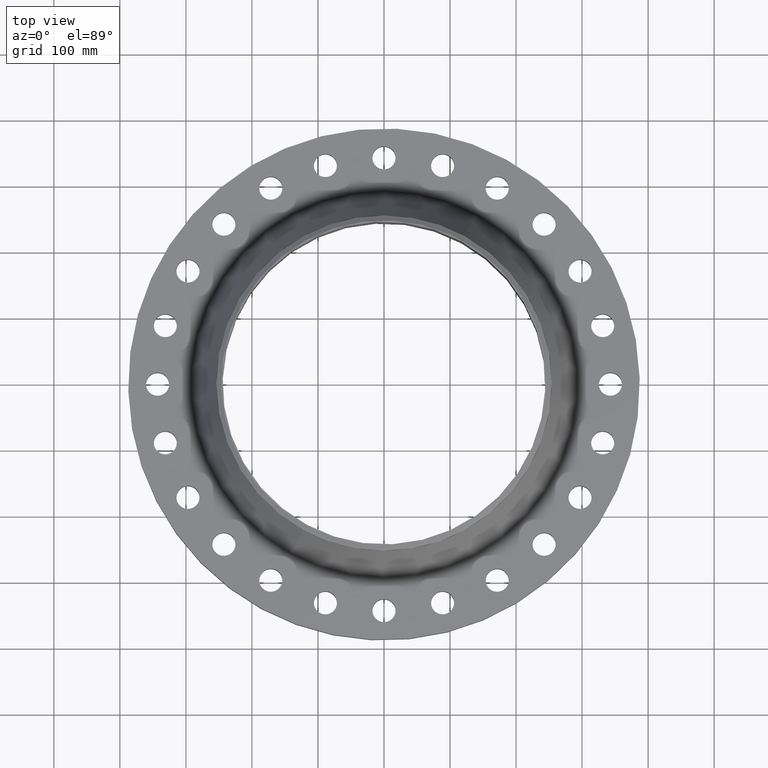
[diagram: clean part render]
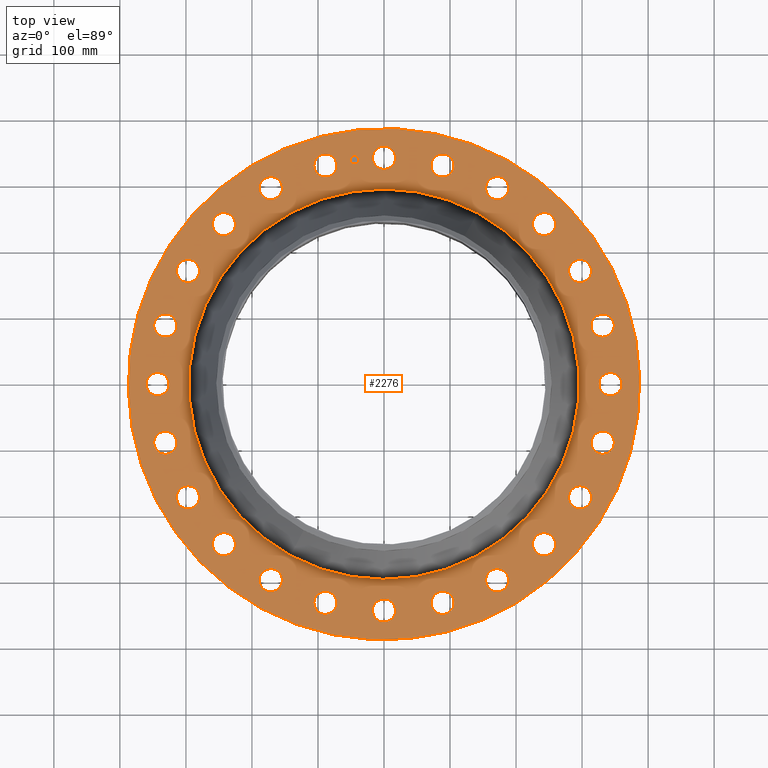
[diagram: same view with one face highlighted and labeled with its STEP entity id]
A machine part, top view. The second image highlights one B-rep face of the part: STEP entity #2276.
In plain terms, the highlighted planar face has unit normal (0, 0, -1).
Its self-contained STEP definition (entity closure, byte-faithful):
#65=AXIS2_PLACEMENT_3D('Circle Axis2P3D',#63,#64,$) ;
#90=AXIS2_PLACEMENT_3D('Circle Axis2P3D',#88,#89,$) ;
#130=AXIS2_PLACEMENT_3D('Circle Axis2P3D',#128,#129,$) ;
#154=AXIS2_PLACEMENT_3D('Circle Axis2P3D',#152,#153,$) ;
#171=AXIS2_PLACEMENT_3D('Circle Axis2P3D',#169,#170,$) ;
#206=AXIS2_PLACEMENT_3D('Circle Axis2P3D',#204,#205,$) ;
#949=AXIS2_PLACEMENT_3D('Circle Axis2P3D',#947,#948,$) ;
#961=AXIS2_PLACEMENT_3D('Circle Axis2P3D',#959,#960,$) ;
#992=AXIS2_PLACEMENT_3D('Circle Axis2P3D',#990,#991,$) ;
#1004=AXIS2_PLACEMENT_3D('Circle Axis2P3D',#1002,#1003,$) ;
#1035=AXIS2_PLACEMENT_3D('Circle Axis2P3D',#1033,#1034,$) ;
#1047=AXIS2_PLACEMENT_3D('Circle Axis2P3D',#1045,#1046,$) ;
#1078=AXIS2_PLACEMENT_3D('Circle Axis2P3D',#1076,#1077,$) ;
#1090=AXIS2_PLACEMENT_3D('Circle Axis2P3D',#1088,#1089,$) ;
#1121=AXIS2_PLACEMENT_3D('Circle Axis2P3D',#1119,#1120,$) ;
#1133=AXIS2_PLACEMENT_3D('Circle Axis2P3D',#1131,#1132,$) ;
#1164=AXIS2_PLACEMENT_3D('Circle Axis2P3D',#1162,#1163,$) ;
#1176=AXIS2_PLACEMENT_3D('Circle Axis2P3D',#1174,#1175,$) ;
#1207=AXIS2_PLACEMENT_3D('Circle Axis2P3D',#1205,#1206,$) ;
#1219=AXIS2_PLACEMENT_3D('Circle Axis2P3D',#1217,#1218,$) ;
#1250=AXIS2_PLACEMENT_3D('Circle Axis2P3D',#1248,#1249,$) ;
#1262=AXIS2_PLACEMENT_3D('Circle Axis2P3D',#1260,#1261,$) ;
#1293=AXIS2_PLACEMENT_3D('Circle Axis2P3D',#1291,#1292,$) ;
#1305=AXIS2_PLACEMENT_3D('Circle Axis2P3D',#1303,#1304,$) ;
#1336=AXIS2_PLACEMENT_3D('Circle Axis2P3D',#1334,#1335,$) ;
#1348=AXIS2_PLACEMENT_3D('Circle Axis2P3D',#1346,#1347,$) ;
#1379=AXIS2_PLACEMENT_3D('Circle Axis2P3D',#1377,#1378,$) ;
#1391=AXIS2_PLACEMENT_3D('Circle Axis2P3D',#1389,#1390,$) ;
#1422=AXIS2_PLACEMENT_3D('Circle Axis2P3D',#1420,#1421,$) ;
#1434=AXIS2_PLACEMENT_3D('Circle Axis2P3D',#1432,#1433,$) ;
#1465=AXIS2_PLACEMENT_3D('Circle Axis2P3D',#1463,#1464,$) ;
#1477=AXIS2_PLACEMENT_3D('Circle Axis2P3D',#1475,#1476,$) ;
#1508=AXIS2_PLACEMENT_3D('Circle Axis2P3D',#1506,#1507,$) ;
#1520=AXIS2_PLACEMENT_3D('Circle Axis2P3D',#1518,#1519,$) ;
#1551=AXIS2_PLACEMENT_3D('Circle Axis2P3D',#1549,#1550,$) ;
#1563=AXIS2_PLACEMENT_3D('Circle Axis2P3D',#1561,#1562,$) ;
#1594=AXIS2_PLACEMENT_3D('Circle Axis2P3D',#1592,#1593,$) ;
#1606=AXIS2_PLACEMENT_3D('Circle Axis2P3D',#1604,#1605,$) ;
#1637=AXIS2_PLACEMENT_3D('Circle Axis2P3D',#1635,#1636,$) ;
#1649=AXIS2_PLACEMENT_3D('Circle Axis2P3D',#1647,#1648,$) ;
#1680=AXIS2_PLACEMENT_3D('Circle Axis2P3D',#1678,#1679,$) ;
#1692=AXIS2_PLACEMENT_3D('Circle Axis2P3D',#1690,#1691,$) ;
#1723=AXIS2_PLACEMENT_3D('Circle Axis2P3D',#1721,#1722,$) ;
#1735=AXIS2_PLACEMENT_3D('Circle Axis2P3D',#1733,#1734,$) ;
#1766=AXIS2_PLACEMENT_3D('Circle Axis2P3D',#1764,#1765,$) ;
#1778=AXIS2_PLACEMENT_3D('Circle Axis2P3D',#1776,#1777,$) ;
#1809=AXIS2_PLACEMENT_3D('Circle Axis2P3D',#1807,#1808,$) ;
#1821=AXIS2_PLACEMENT_3D('Circle Axis2P3D',#1819,#1820,$) ;
#1852=AXIS2_PLACEMENT_3D('Circle Axis2P3D',#1850,#1851,$) ;
#1864=AXIS2_PLACEMENT_3D('Circle Axis2P3D',#1862,#1863,$) ;
#1895=AXIS2_PLACEMENT_3D('Circle Axis2P3D',#1893,#1894,$) ;
#1907=AXIS2_PLACEMENT_3D('Circle Axis2P3D',#1905,#1906,$) ;
#2152=AXIS2_PLACEMENT_3D('Plane Axis2P3D',#2149,#2150,#2151) ;
#2260=AXIS2_PLACEMENT_3D('Circle Axis2P3D',#2258,#2259,$) ;
#2269=AXIS2_PLACEMENT_3D('Circle Axis2P3D',#2267,#2268,$) ;
#46=CARTESIAN_POINT('Vertex',(-0.605531967707,13.8308036217,2.44000000001)) ;
#60=CARTESIAN_POINT('Vertex',(0.605531967707,13.1691963784,2.44000000001)) ;
#63=CARTESIAN_POINT('Axis2P3D Location',(0.,13.5000000001,2.44000000001)) ;
#88=CARTESIAN_POINT('Axis2P3D Location',(0.,13.5000000001,2.44000000001)) ;
#125=CARTESIAN_POINT('Vertex',(-7.31123946374,-13.3831340689,2.44000000001)) ;
#128=CARTESIAN_POINT('Axis2P3D Location',(0.,0.,2.44000000001)) ;
#132=CARTESIAN_POINT('Vertex',(7.31123946374,13.3831340689,2.44000000001)) ;
#152=CARTESIAN_POINT('Axis2P3D Location',(0.,0.,2.44000000001)) ;
#169=CARTESIAN_POINT('Axis2P3D Location',(0.,0.,2.44000000001)) ;
#173=CARTESIAN_POINT('Vertex',(5.57913456957,10.2125373274,2.44000000001)) ;
#175=CARTESIAN_POINT('Vertex',(-5.57913456957,-10.2125373274,2.44000000001)) ;
#204=CARTESIAN_POINT('Axis2P3D Location',(0.,0.,2.44000000001)) ;
#937=CARTESIAN_POINT('Vertex',(-2.99477642012,-13.5162536222,2.44000000001)) ;
#944=CARTESIAN_POINT('Vertex',(-3.99333779768,-12.5637436877,2.44000000001)) ;
#947=CARTESIAN_POINT('Axis2P3D Location',(-3.4940571089,-13.039998655,2.44000000001)) ;
#959=CARTESIAN_POINT('Axis2P3D Location',(-3.4940571089,-13.039998655,2.44000000001)) ;
#980=CARTESIAN_POINT('Vertex',(6.39099574401,12.280593275,2.44000000001)) ;
#987=CARTESIAN_POINT('Vertex',(7.10900425605,11.1020926273,2.44000000001)) ;
#990=CARTESIAN_POINT('Axis2P3D Location',(6.75000000003,11.6913429511,2.44000000001)) ;
#1002=CARTESIAN_POINT('Axis2P3D Location',(6.75000000003,11.6913429511,2.44000000001)) ;
#1023=CARTESIAN_POINT('Vertex',(-6.39099574401,-12.280593275,2.44000000001)) ;
#1030=CARTESIAN_POINT('Vertex',(-7.10900425605,-11.1020926273,2.44000000001)) ;
#1033=CARTESIAN_POINT('Axis2P3D Location',(-6.75000000003,-11.6913429511,2.44000000001)) ;
#1045=CARTESIAN_POINT('Axis2P3D Location',(-6.75000000003,-11.6913429511,2.44000000001)) ;
#1066=CARTESIAN_POINT('Vertex',(9.35167926957,10.2080307907,2.44000000001)) ;
#1073=CARTESIAN_POINT('Vertex',(9.74020382255,8.88385230136,2.44000000001)) ;
#1076=CARTESIAN_POINT('Axis2P3D Location',(9.54594154606,9.54594154606,2.44000000001)) ;
#1088=CARTESIAN_POINT('Axis2P3D Location',(9.54594154606,9.54594154606,2.44000000001)) ;
#1109=CARTESIAN_POINT('Vertex',(-9.35167926957,-10.2080307907,2.44000000001)) ;
#1116=CARTESIAN_POINT('Vertex',(-9.74020382255,-8.88385230136,2.44000000001)) ;
#1119=CARTESIAN_POINT('Axis2P3D Location',(-9.54594154606,-9.54594154606,2.44000000001)) ;
#1131=CARTESIAN_POINT('Axis2P3D Location',(-9.54594154606,-9.54594154606,2.44000000001)) ;
#1152=CARTESIAN_POINT('Vertex',(11.6750613073,7.43980787768,2.44000000001)) ;
#1159=CARTESIAN_POINT('Vertex',(11.707624595,6.06019212237,2.44000000001)) ;
#1162=CARTESIAN_POINT('Axis2P3D Location',(11.6913429511,6.75000000003,2.44000000001)) ;
#1174=CARTESIAN_POINT('Axis2P3D Location',(11.6913429511,6.75000000003,2.44000000001)) ;
#1195=CARTESIAN_POINT('Vertex',(-11.6750613073,-7.43980787768,2.44000000001)) ;
#1202=CARTESIAN_POINT('Vertex',(-11.707624595,-6.06019212237,2.44000000001)) ;
#1205=CARTESIAN_POINT('Axis2P3D Location',(-11.6913429511,-6.75000000003,2.44000000001)) ;
#1217=CARTESIAN_POINT('Axis2P3D Location',(-11.6913429511,-6.75000000003,2.44000000001)) ;
#1238=CARTESIAN_POINT('Vertex',(13.2028072109,4.16457435262,2.44000000001)) ;
#1245=CARTESIAN_POINT('Vertex',(12.877190099,2.82353986518,2.44000000001)) ;
#1248=CARTESIAN_POINT('Axis2P3D Location',(13.039998655,3.4940571089,2.44000000001)) ;
#1260=CARTESIAN_POINT('Axis2P3D Location',(13.039998655,3.4940571089,2.44000000001)) ;
#1281=CARTESIAN_POINT('Vertex',(-13.2028072109,-4.16457435262,2.44000000001)) ;
#1288=CARTESIAN_POINT('Vertex',(-12.877190099,-2.82353986518,2.44000000001)) ;
#1291=CARTESIAN_POINT('Axis2P3D Location',(-13.039998655,-3.4940571089,2.44000000001)) ;
#1303=CARTESIAN_POINT('Axis2P3D Location',(-13.039998655,-3.4940571089,2.44000000001)) ;
#1324=CARTESIAN_POINT('Vertex',(13.8308036217,0.605531967707,2.44000000001)) ;
#1331=CARTESIAN_POINT('Vertex',(13.1691963784,-0.605531967707,2.44000000001)) ;
#1334=CARTESIAN_POINT('Axis2P3D Location',(13.5000000001,-1.41129328698E-015,2.44000000001)) ;
#1346=CARTESIAN_POINT('Axis2P3D Location',(13.5000000001,-1.41129328698E-015,2.44000000001)) ;
#1367=CARTESIAN_POINT('Vertex',(-13.8308036217,-0.605531967707,2.44000000001)) ;
#1374=CARTESIAN_POINT('Vertex',(-13.1691963784,0.605531967707,2.44000000001)) ;
#1377=CARTESIAN_POINT('Axis2P3D Location',(-13.5000000001,-2.47990976828E-015,2.44000000001)) ;
#1389=CARTESIAN_POINT('Axis2P3D Location',(-13.5000000001,-2.47990976828E-015,2.44000000001)) ;
#1410=CARTESIAN_POINT('Vertex',(13.5162536222,-2.99477642012,2.44000000001)) ;
#1417=CARTESIAN_POINT('Vertex',(12.5637436877,-3.99333779768,2.44000000001)) ;
#1420=CARTESIAN_POINT('Axis2P3D Location',(13.039998655,-3.4940571089,2.44000000001)) ;
#1432=CARTESIAN_POINT('Axis2P3D Location',(13.039998655,-3.4940571089,2.44000000001)) ;
#1453=CARTESIAN_POINT('Vertex',(-13.5162536222,2.99477642012,2.44000000001)) ;
#1460=CARTESIAN_POINT('Vertex',(-12.5637436877,3.99333779768,2.44000000001)) ;
#1463=CARTESIAN_POINT('Axis2P3D Location',(-13.039998655,3.4940571089,2.44000000001)) ;
#1475=CARTESIAN_POINT('Axis2P3D Location',(-13.039998655,3.4940571089,2.44000000001)) ;
#1496=CARTESIAN_POINT('Vertex',(12.280593275,-6.39099574401,2.44000000001)) ;
#1503=CARTESIAN_POINT('Vertex',(11.1020926273,-7.10900425605,2.44000000001)) ;
#1506=CARTESIAN_POINT('Axis2P3D Location',(11.6913429511,-6.75000000003,2.44000000001)) ;
#1518=CARTESIAN_POINT('Axis2P3D Location',(11.6913429511,-6.75000000003,2.44000000001)) ;
#1539=CARTESIAN_POINT('Vertex',(-12.280593275,6.39099574401,2.44000000001)) ;
#1546=CARTESIAN_POINT('Vertex',(-11.1020926273,7.10900425605,2.44000000001)) ;
#1549=CARTESIAN_POINT('Axis2P3D Location',(-11.6913429511,6.75000000003,2.44000000001)) ;
#1561=CARTESIAN_POINT('Axis2P3D Location',(-11.6913429511,6.75000000003,2.44000000001)) ;
#1582=CARTESIAN_POINT('Vertex',(10.2080307907,-9.35167926957,2.44000000001)) ;
#1589=CARTESIAN_POINT('Vertex',(8.88385230136,-9.74020382255,2.44000000001)) ;
#1592=CARTESIAN_POINT('Axis2P3D Location',(9.54594154606,-9.54594154606,2.44000000001)) ;
#1604=CARTESIAN_POINT('Axis2P3D Location',(9.54594154606,-9.54594154606,2.44000000001)) ;
#1625=CARTESIAN_POINT('Vertex',(-10.2080307907,9.35167926957,2.44000000001)) ;
#1632=CARTESIAN_POINT('Vertex',(-8.88385230136,9.74020382255,2.44000000001)) ;
#1635=CARTESIAN_POINT('Axis2P3D Location',(-9.54594154606,9.54594154606,2.44000000001)) ;
#1647=CARTESIAN_POINT('Axis2P3D Location',(-9.54594154606,9.54594154606,2.44000000001)) ;
#1668=CARTESIAN_POINT('Vertex',(7.43980787768,-11.6750613073,2.44000000001)) ;
#1675=CARTESIAN_POINT('Vertex',(6.06019212237,-11.707624595,2.44000000001)) ;
#1678=CARTESIAN_POINT('Axis2P3D Location',(6.75000000003,-11.6913429511,2.44000000001)) ;
#1690=CARTESIAN_POINT('Axis2P3D Location',(6.75000000003,-11.6913429511,2.44000000001)) ;
#1711=CARTESIAN_POINT('Vertex',(-7.43980787768,11.6750613073,2.44000000001)) ;
#1718=CARTESIAN_POINT('Vertex',(-6.06019212237,11.707624595,2.44000000001)) ;
#1721=CARTESIAN_POINT('Axis2P3D Location',(-6.75000000003,11.6913429511,2.44000000001)) ;
#1733=CARTESIAN_POINT('Axis2P3D Location',(-6.75000000003,11.6913429511,2.44000000001)) ;
#1754=CARTESIAN_POINT('Vertex',(4.16457435262,-13.2028072109,2.44000000001)) ;
#1761=CARTESIAN_POINT('Vertex',(2.82353986518,-12.877190099,2.44000000001)) ;
#1764=CARTESIAN_POINT('Axis2P3D Location',(3.4940571089,-13.039998655,2.44000000001)) ;
#1776=CARTESIAN_POINT('Axis2P3D Location',(3.4940571089,-13.039998655,2.44000000001)) ;
#1797=CARTESIAN_POINT('Vertex',(-4.16457435262,13.2028072109,2.44000000001)) ;
#1804=CARTESIAN_POINT('Vertex',(-2.82353986518,12.877190099,2.44000000001)) ;
#1807=CARTESIAN_POINT('Axis2P3D Location',(-3.4940571089,13.039998655,2.44000000001)) ;
#1819=CARTESIAN_POINT('Axis2P3D Location',(-3.4940571089,13.039998655,2.44000000001)) ;
#1840=CARTESIAN_POINT('Vertex',(0.605531967707,-13.8308036217,2.44000000001)) ;
#1847=CARTESIAN_POINT('Vertex',(-0.605531967707,-13.1691963784,2.44000000001)) ;
#1850=CARTESIAN_POINT('Axis2P3D Location',(1.65327317886E-015,-13.5000000001,2.44000000001)) ;
#1862=CARTESIAN_POINT('Axis2P3D Location',(1.65327317886E-015,-13.5000000001,2.44000000001)) ;
#1883=CARTESIAN_POINT('Vertex',(2.99477642012,13.5162536222,2.44000000001)) ;
#1890=CARTESIAN_POINT('Vertex',(3.99333779768,12.5637436877,2.44000000001)) ;
#1893=CARTESIAN_POINT('Axis2P3D Location',(3.4940571089,13.039998655,2.44000000001)) ;
#1905=CARTESIAN_POINT('Axis2P3D Location',(3.4940571089,13.039998655,2.44000000001)) ;
#2149=CARTESIAN_POINT('Axis2P3D Location',(0.,15.2500000001,2.44000000001)) ;
#2258=CARTESIAN_POINT('Axis2P3D Location',(-1.76210359498,13.3845056286,2.44000000001)) ;
#2262=CARTESIAN_POINT('Vertex',(-2.00748619817,13.352200396,2.44000000001)) ;
#2264=CARTESIAN_POINT('Vertex',(-1.51672099179,13.4168108612,2.44000000001)) ;
#2267=CARTESIAN_POINT('Axis2P3D Location',(-1.76210359498,13.3845056286,2.44000000001)) ;
#64=DIRECTION('Axis2P3D Direction',(0.,-0.,-0.0393700787402)) ;
#89=DIRECTION('Axis2P3D Direction',(0.,-0.,-0.0393700787402)) ;
#129=DIRECTION('Axis2P3D Direction',(0.,0.,-0.0393700787402)) ;
#153=DIRECTION('Axis2P3D Direction',(0.,0.,-0.0393700787402)) ;
#170=DIRECTION('Axis2P3D Direction',(0.,0.,-0.0393700787402)) ;
#205=DIRECTION('Axis2P3D Direction',(0.,0.,-0.0393700787402)) ;
#948=DIRECTION('Axis2P3D Direction',(0.,0.,-0.0393700787402)) ;
#960=DIRECTION('Axis2P3D Direction',(0.,0.,-0.0393700787402)) ;
#991=DIRECTION('Axis2P3D Direction',(0.,-0.,-0.0393700787402)) ;
#1003=DIRECTION('Axis2P3D Direction',(0.,-0.,-0.0393700787402)) ;
#1034=DIRECTION('Axis2P3D Direction',(0.,0.,-0.0393700787402)) ;
#1046=DIRECTION('Axis2P3D Direction',(0.,0.,-0.0393700787402)) ;
#1077=DIRECTION('Axis2P3D Direction',(0.,-0.,-0.0393700787402)) ;
#1089=DIRECTION('Axis2P3D Direction',(0.,-0.,-0.0393700787402)) ;
#1120=DIRECTION('Axis2P3D Direction',(0.,0.,-0.0393700787402)) ;
#1132=DIRECTION('Axis2P3D Direction',(0.,0.,-0.0393700787402)) ;
#1163=DIRECTION('Axis2P3D Direction',(0.,-0.,-0.0393700787402)) ;
#1175=DIRECTION('Axis2P3D Direction',(0.,-0.,-0.0393700787402)) ;
#1206=DIRECTION('Axis2P3D Direction',(0.,0.,-0.0393700787402)) ;
#1218=DIRECTION('Axis2P3D Direction',(0.,0.,-0.0393700787402)) ;
#1249=DIRECTION('Axis2P3D Direction',(0.,-0.,-0.0393700787402)) ;
#1261=DIRECTION('Axis2P3D Direction',(0.,-0.,-0.0393700787402)) ;
#1292=DIRECTION('Axis2P3D Direction',(0.,0.,-0.0393700787402)) ;
#1304=DIRECTION('Axis2P3D Direction',(0.,0.,-0.0393700787402)) ;
#1335=DIRECTION('Axis2P3D Direction',(0.,-0.,-0.0393700787402)) ;
#1347=DIRECTION('Axis2P3D Direction',(0.,-0.,-0.0393700787402)) ;
#1378=DIRECTION('Axis2P3D Direction',(0.,0.,-0.0393700787402)) ;
#1390=DIRECTION('Axis2P3D Direction',(0.,0.,-0.0393700787402)) ;
#1421=DIRECTION('Axis2P3D Direction',(-0.,0.,-0.0393700787402)) ;
#1433=DIRECTION('Axis2P3D Direction',(-0.,0.,-0.0393700787402)) ;
#1464=DIRECTION('Axis2P3D Direction',(0.,0.,-0.0393700787402)) ;
#1476=DIRECTION('Axis2P3D Direction',(0.,0.,-0.0393700787402)) ;
#1507=DIRECTION('Axis2P3D Direction',(-0.,0.,-0.0393700787402)) ;
#1519=DIRECTION('Axis2P3D Direction',(-0.,0.,-0.0393700787402)) ;
#1550=DIRECTION('Axis2P3D Direction',(0.,0.,-0.0393700787402)) ;
#1562=DIRECTION('Axis2P3D Direction',(0.,0.,-0.0393700787402)) ;
#1593=DIRECTION('Axis2P3D Direction',(-0.,0.,-0.0393700787402)) ;
#1605=DIRECTION('Axis2P3D Direction',(-0.,0.,-0.0393700787402)) ;
#1636=DIRECTION('Axis2P3D Direction',(0.,0.,-0.0393700787402)) ;
#1648=DIRECTION('Axis2P3D Direction',(0.,0.,-0.0393700787402)) ;
#1679=DIRECTION('Axis2P3D Direction',(-0.,0.,-0.0393700787402)) ;
#1691=DIRECTION('Axis2P3D Direction',(-0.,0.,-0.0393700787402)) ;
#1722=DIRECTION('Axis2P3D Direction',(0.,0.,-0.0393700787402)) ;
#1734=DIRECTION('Axis2P3D Direction',(0.,0.,-0.0393700787402)) ;
#1765=DIRECTION('Axis2P3D Direction',(-0.,0.,-0.0393700787402)) ;
#1777=DIRECTION('Axis2P3D Direction',(-0.,0.,-0.0393700787402)) ;
#1808=DIRECTION('Axis2P3D Direction',(0.,0.,-0.0393700787402)) ;
#1820=DIRECTION('Axis2P3D Direction',(0.,0.,-0.0393700787402)) ;
#1851=DIRECTION('Axis2P3D Direction',(-0.,0.,-0.0393700787402)) ;
#1863=DIRECTION('Axis2P3D Direction',(-0.,0.,-0.0393700787402)) ;
#1894=DIRECTION('Axis2P3D Direction',(0.,-0.,-0.0393700787402)) ;
#1906=DIRECTION('Axis2P3D Direction',(0.,-0.,-0.0393700787402)) ;
#2150=DIRECTION('Axis2P3D Direction',(0.,0.,-0.0393700787402)) ;
#2151=DIRECTION('Axis2P3D XDirection',(0.0393700787402,0.,0.)) ;
#2259=DIRECTION('Axis2P3D Direction',(0.,0.,-0.0393700787402)) ;
#2268=DIRECTION('Axis2P3D Direction',(0.,0.,-0.0393700787402)) ;
#2155=ORIENTED_EDGE('',*,*,#156,.F.) ;
#2156=ORIENTED_EDGE('',*,*,#134,.F.) ;
#2159=ORIENTED_EDGE('',*,*,#67,.T.) ;
#2160=ORIENTED_EDGE('',*,*,#92,.T.) ;
#2163=ORIENTED_EDGE('',*,*,#208,.T.) ;
#2164=ORIENTED_EDGE('',*,*,#177,.T.) ;
#2167=ORIENTED_EDGE('',*,*,#1909,.T.) ;
#2168=ORIENTED_EDGE('',*,*,#1897,.T.) ;
#2171=ORIENTED_EDGE('',*,*,#1006,.T.) ;
#2172=ORIENTED_EDGE('',*,*,#994,.T.) ;
#2175=ORIENTED_EDGE('',*,*,#1092,.T.) ;
#2176=ORIENTED_EDGE('',*,*,#1080,.T.) ;
#2179=ORIENTED_EDGE('',*,*,#1178,.T.) ;
#2180=ORIENTED_EDGE('',*,*,#1166,.T.) ;
#2183=ORIENTED_EDGE('',*,*,#1264,.T.) ;
#2184=ORIENTED_EDGE('',*,*,#1252,.T.) ;
#2187=ORIENTED_EDGE('',*,*,#1350,.T.) ;
#2188=ORIENTED_EDGE('',*,*,#1338,.T.) ;
#2191=ORIENTED_EDGE('',*,*,#1436,.T.) ;
#2192=ORIENTED_EDGE('',*,*,#1424,.T.) ;
#2195=ORIENTED_EDGE('',*,*,#1522,.T.) ;
#2196=ORIENTED_EDGE('',*,*,#1510,.T.) ;
#2199=ORIENTED_EDGE('',*,*,#1608,.T.) ;
#2200=ORIENTED_EDGE('',*,*,#1596,.T.) ;
#2203=ORIENTED_EDGE('',*,*,#1694,.T.) ;
#2204=ORIENTED_EDGE('',*,*,#1682,.T.) ;
#2207=ORIENTED_EDGE('',*,*,#1780,.T.) ;
#2208=ORIENTED_EDGE('',*,*,#1768,.T.) ;
#2211=ORIENTED_EDGE('',*,*,#1866,.T.) ;
#2212=ORIENTED_EDGE('',*,*,#1854,.T.) ;
#2215=ORIENTED_EDGE('',*,*,#963,.T.) ;
#2216=ORIENTED_EDGE('',*,*,#951,.T.) ;
#2219=ORIENTED_EDGE('',*,*,#1049,.T.) ;
#2220=ORIENTED_EDGE('',*,*,#1037,.T.) ;
#2223=ORIENTED_EDGE('',*,*,#1135,.T.) ;
#2224=ORIENTED_EDGE('',*,*,#1123,.T.) ;
#2227=ORIENTED_EDGE('',*,*,#1221,.T.) ;
#2228=ORIENTED_EDGE('',*,*,#1209,.T.) ;
#2231=ORIENTED_EDGE('',*,*,#1307,.T.) ;
#2232=ORIENTED_EDGE('',*,*,#1295,.T.) ;
#2235=ORIENTED_EDGE('',*,*,#1393,.T.) ;
#2236=ORIENTED_EDGE('',*,*,#1381,.T.) ;
#2239=ORIENTED_EDGE('',*,*,#1479,.T.) ;
#2240=ORIENTED_EDGE('',*,*,#1467,.T.) ;
#2243=ORIENTED_EDGE('',*,*,#1565,.T.) ;
#2244=ORIENTED_EDGE('',*,*,#1553,.T.) ;
#2247=ORIENTED_EDGE('',*,*,#1651,.T.) ;
#2248=ORIENTED_EDGE('',*,*,#1639,.T.) ;
#2251=ORIENTED_EDGE('',*,*,#1737,.T.) ;
#2252=ORIENTED_EDGE('',*,*,#1725,.T.) ;
#2255=ORIENTED_EDGE('',*,*,#1823,.T.) ;
#2256=ORIENTED_EDGE('',*,*,#1811,.T.) ;
#2273=ORIENTED_EDGE('',*,*,#2266,.T.) ;
#2274=ORIENTED_EDGE('',*,*,#2271,.T.) ;
#2161=FACE_BOUND('',#2158,.T.) ;
#2165=FACE_BOUND('',#2162,.T.) ;
#2169=FACE_BOUND('',#2166,.T.) ;
#2173=FACE_BOUND('',#2170,.T.) ;
#2177=FACE_BOUND('',#2174,.T.) ;
#2181=FACE_BOUND('',#2178,.T.) ;
#2185=FACE_BOUND('',#2182,.T.) ;
#2189=FACE_BOUND('',#2186,.T.) ;
#2193=FACE_BOUND('',#2190,.T.) ;
#2197=FACE_BOUND('',#2194,.T.) ;
#2201=FACE_BOUND('',#2198,.T.) ;
#2205=FACE_BOUND('',#2202,.T.) ;
#2209=FACE_BOUND('',#2206,.T.) ;
#2213=FACE_BOUND('',#2210,.T.) ;
#2217=FACE_BOUND('',#2214,.T.) ;
#2221=FACE_BOUND('',#2218,.T.) ;
#2225=FACE_BOUND('',#2222,.T.) ;
#2229=FACE_BOUND('',#2226,.T.) ;
#2233=FACE_BOUND('',#2230,.T.) ;
#2237=FACE_BOUND('',#2234,.T.) ;
#2241=FACE_BOUND('',#2238,.T.) ;
#2245=FACE_BOUND('',#2242,.T.) ;
#2249=FACE_BOUND('',#2246,.T.) ;
#2253=FACE_BOUND('',#2250,.T.) ;
#2257=FACE_BOUND('',#2254,.T.) ;
#2275=FACE_BOUND('',#2272,.T.) ;
#2276=ADVANCED_FACE('PartBody',(#2157,#2161,#2165,#2169,#2173,#2177,#2181,#2185,#2189,#2193,#2197,#2201,#2205,#2209,#2213,#2217,#2221,#2225,#2229,#2233,#2237,#2241,#2245,#2249,#2253,#2257,#2275),#2153,.F.) ;
#66=CIRCLE('generated circle',#65,0.690000000003) ;
#91=CIRCLE('generated circle',#90,0.690000000003) ;
#131=CIRCLE('generated circle',#130,15.2500000001) ;
#155=CIRCLE('generated circle',#154,15.2500000001) ;
#172=CIRCLE('generated circle',#171,11.6371242671) ;
#207=CIRCLE('generated circle',#206,11.6371242671) ;
#950=CIRCLE('generated circle',#949,0.690000000003) ;
#962=CIRCLE('generated circle',#961,0.690000000003) ;
#993=CIRCLE('generated circle',#992,0.690000000003) ;
#1005=CIRCLE('generated circle',#1004,0.690000000003) ;
#1036=CIRCLE('generated circle',#1035,0.690000000003) ;
#1048=CIRCLE('generated circle',#1047,0.690000000003) ;
#1079=CIRCLE('generated circle',#1078,0.690000000003) ;
#1091=CIRCLE('generated circle',#1090,0.690000000003) ;
#1122=CIRCLE('generated circle',#1121,0.690000000003) ;
#1134=CIRCLE('generated circle',#1133,0.690000000003) ;
#1165=CIRCLE('generated circle',#1164,0.690000000003) ;
#1177=CIRCLE('generated circle',#1176,0.690000000003) ;
#1208=CIRCLE('generated circle',#1207,0.690000000003) ;
#1220=CIRCLE('generated circle',#1219,0.690000000003) ;
#1251=CIRCLE('generated circle',#1250,0.690000000003) ;
#1263=CIRCLE('generated circle',#1262,0.690000000003) ;
#1294=CIRCLE('generated circle',#1293,0.690000000003) ;
#1306=CIRCLE('generated circle',#1305,0.690000000003) ;
#1337=CIRCLE('generated circle',#1336,0.690000000003) ;
#1349=CIRCLE('generated circle',#1348,0.690000000003) ;
#1380=CIRCLE('generated circle',#1379,0.690000000003) ;
#1392=CIRCLE('generated circle',#1391,0.690000000003) ;
#1423=CIRCLE('generated circle',#1422,0.690000000003) ;
#1435=CIRCLE('generated circle',#1434,0.690000000003) ;
#1466=CIRCLE('generated circle',#1465,0.690000000003) ;
#1478=CIRCLE('generated circle',#1477,0.690000000003) ;
#1509=CIRCLE('generated circle',#1508,0.690000000003) ;
#1521=CIRCLE('generated circle',#1520,0.690000000003) ;
#1552=CIRCLE('generated circle',#1551,0.690000000003) ;
#1564=CIRCLE('generated circle',#1563,0.690000000003) ;
#1595=CIRCLE('generated circle',#1594,0.690000000003) ;
#1607=CIRCLE('generated circle',#1606,0.690000000003) ;
#1638=CIRCLE('generated circle',#1637,0.690000000003) ;
#1650=CIRCLE('generated circle',#1649,0.690000000003) ;
#1681=CIRCLE('generated circle',#1680,0.690000000003) ;
#1693=CIRCLE('generated circle',#1692,0.690000000003) ;
#1724=CIRCLE('generated circle',#1723,0.690000000003) ;
#1736=CIRCLE('generated circle',#1735,0.690000000003) ;
#1767=CIRCLE('generated circle',#1766,0.690000000003) ;
#1779=CIRCLE('generated circle',#1778,0.690000000003) ;
#1810=CIRCLE('generated circle',#1809,0.690000000003) ;
#1822=CIRCLE('generated circle',#1821,0.690000000003) ;
#1853=CIRCLE('generated circle',#1852,0.690000000003) ;
#1865=CIRCLE('generated circle',#1864,0.690000000003) ;
#1896=CIRCLE('generated circle',#1895,0.690000000003) ;
#1908=CIRCLE('generated circle',#1907,0.690000000003) ;
#2261=CIRCLE('generated circle',#2260,0.247500000001) ;
#2270=CIRCLE('generated circle',#2269,0.247500000001) ;
#67=EDGE_CURVE('',#47,#61,#66,.T.) ;
#92=EDGE_CURVE('',#61,#47,#91,.T.) ;
#134=EDGE_CURVE('',#126,#133,#131,.T.) ;
#156=EDGE_CURVE('',#133,#126,#155,.T.) ;
#177=EDGE_CURVE('',#174,#176,#172,.T.) ;
#208=EDGE_CURVE('',#176,#174,#207,.T.) ;
#951=EDGE_CURVE('',#938,#945,#950,.T.) ;
#963=EDGE_CURVE('',#945,#938,#962,.T.) ;
#994=EDGE_CURVE('',#981,#988,#993,.T.) ;
#1006=EDGE_CURVE('',#988,#981,#1005,.T.) ;
#1037=EDGE_CURVE('',#1024,#1031,#1036,.T.) ;
#1049=EDGE_CURVE('',#1031,#1024,#1048,.T.) ;
#1080=EDGE_CURVE('',#1067,#1074,#1079,.T.) ;
#1092=EDGE_CURVE('',#1074,#1067,#1091,.T.) ;
#1123=EDGE_CURVE('',#1110,#1117,#1122,.T.) ;
#1135=EDGE_CURVE('',#1117,#1110,#1134,.T.) ;
#1166=EDGE_CURVE('',#1153,#1160,#1165,.T.) ;
#1178=EDGE_CURVE('',#1160,#1153,#1177,.T.) ;
#1209=EDGE_CURVE('',#1196,#1203,#1208,.T.) ;
#1221=EDGE_CURVE('',#1203,#1196,#1220,.T.) ;
#1252=EDGE_CURVE('',#1239,#1246,#1251,.T.) ;
#1264=EDGE_CURVE('',#1246,#1239,#1263,.T.) ;
#1295=EDGE_CURVE('',#1282,#1289,#1294,.T.) ;
#1307=EDGE_CURVE('',#1289,#1282,#1306,.T.) ;
#1338=EDGE_CURVE('',#1325,#1332,#1337,.T.) ;
#1350=EDGE_CURVE('',#1332,#1325,#1349,.T.) ;
#1381=EDGE_CURVE('',#1368,#1375,#1380,.T.) ;
#1393=EDGE_CURVE('',#1375,#1368,#1392,.T.) ;
#1424=EDGE_CURVE('',#1411,#1418,#1423,.T.) ;
#1436=EDGE_CURVE('',#1418,#1411,#1435,.T.) ;
#1467=EDGE_CURVE('',#1454,#1461,#1466,.T.) ;
#1479=EDGE_CURVE('',#1461,#1454,#1478,.T.) ;
#1510=EDGE_CURVE('',#1497,#1504,#1509,.T.) ;
#1522=EDGE_CURVE('',#1504,#1497,#1521,.T.) ;
#1553=EDGE_CURVE('',#1540,#1547,#1552,.T.) ;
#1565=EDGE_CURVE('',#1547,#1540,#1564,.T.) ;
#1596=EDGE_CURVE('',#1583,#1590,#1595,.T.) ;
#1608=EDGE_CURVE('',#1590,#1583,#1607,.T.) ;
#1639=EDGE_CURVE('',#1626,#1633,#1638,.T.) ;
#1651=EDGE_CURVE('',#1633,#1626,#1650,.T.) ;
#1682=EDGE_CURVE('',#1669,#1676,#1681,.T.) ;
#1694=EDGE_CURVE('',#1676,#1669,#1693,.T.) ;
#1725=EDGE_CURVE('',#1712,#1719,#1724,.T.) ;
#1737=EDGE_CURVE('',#1719,#1712,#1736,.T.) ;
#1768=EDGE_CURVE('',#1755,#1762,#1767,.T.) ;
#1780=EDGE_CURVE('',#1762,#1755,#1779,.T.) ;
#1811=EDGE_CURVE('',#1798,#1805,#1810,.T.) ;
#1823=EDGE_CURVE('',#1805,#1798,#1822,.T.) ;
#1854=EDGE_CURVE('',#1841,#1848,#1853,.T.) ;
#1866=EDGE_CURVE('',#1848,#1841,#1865,.T.) ;
#1897=EDGE_CURVE('',#1884,#1891,#1896,.T.) ;
#1909=EDGE_CURVE('',#1891,#1884,#1908,.T.) ;
#2266=EDGE_CURVE('',#2263,#2265,#2261,.T.) ;
#2271=EDGE_CURVE('',#2265,#2263,#2270,.T.) ;
#2154=EDGE_LOOP('',(#2155,#2156)) ;
#2158=EDGE_LOOP('',(#2159,#2160)) ;
#2162=EDGE_LOOP('',(#2163,#2164)) ;
#2166=EDGE_LOOP('',(#2167,#2168)) ;
#2170=EDGE_LOOP('',(#2171,#2172)) ;
#2174=EDGE_LOOP('',(#2175,#2176)) ;
#2178=EDGE_LOOP('',(#2179,#2180)) ;
#2182=EDGE_LOOP('',(#2183,#2184)) ;
#2186=EDGE_LOOP('',(#2187,#2188)) ;
#2190=EDGE_LOOP('',(#2191,#2192)) ;
#2194=EDGE_LOOP('',(#2195,#2196)) ;
#2198=EDGE_LOOP('',(#2199,#2200)) ;
#2202=EDGE_LOOP('',(#2203,#2204)) ;
#2206=EDGE_LOOP('',(#2207,#2208)) ;
#2210=EDGE_LOOP('',(#2211,#2212)) ;
#2214=EDGE_LOOP('',(#2215,#2216)) ;
#2218=EDGE_LOOP('',(#2219,#2220)) ;
#2222=EDGE_LOOP('',(#2223,#2224)) ;
#2226=EDGE_LOOP('',(#2227,#2228)) ;
#2230=EDGE_LOOP('',(#2231,#2232)) ;
#2234=EDGE_LOOP('',(#2235,#2236)) ;
#2238=EDGE_LOOP('',(#2239,#2240)) ;
#2242=EDGE_LOOP('',(#2243,#2244)) ;
#2246=EDGE_LOOP('',(#2247,#2248)) ;
#2250=EDGE_LOOP('',(#2251,#2252)) ;
#2254=EDGE_LOOP('',(#2255,#2256)) ;
#2272=EDGE_LOOP('',(#2273,#2274)) ;
#2157=FACE_OUTER_BOUND('',#2154,.T.) ;
#2153=PLANE('',#2152) ;
#47=VERTEX_POINT('',#46) ;
#61=VERTEX_POINT('',#60) ;
#126=VERTEX_POINT('',#125) ;
#133=VERTEX_POINT('',#132) ;
#174=VERTEX_POINT('',#173) ;
#176=VERTEX_POINT('',#175) ;
#938=VERTEX_POINT('',#937) ;
#945=VERTEX_POINT('',#944) ;
#981=VERTEX_POINT('',#980) ;
#988=VERTEX_POINT('',#987) ;
#1024=VERTEX_POINT('',#1023) ;
#1031=VERTEX_POINT('',#1030) ;
#1067=VERTEX_POINT('',#1066) ;
#1074=VERTEX_POINT('',#1073) ;
#1110=VERTEX_POINT('',#1109) ;
#1117=VERTEX_POINT('',#1116) ;
#1153=VERTEX_POINT('',#1152) ;
#1160=VERTEX_POINT('',#1159) ;
#1196=VERTEX_POINT('',#1195) ;
#1203=VERTEX_POINT('',#1202) ;
#1239=VERTEX_POINT('',#1238) ;
#1246=VERTEX_POINT('',#1245) ;
#1282=VERTEX_POINT('',#1281) ;
#1289=VERTEX_POINT('',#1288) ;
#1325=VERTEX_POINT('',#1324) ;
#1332=VERTEX_POINT('',#1331) ;
#1368=VERTEX_POINT('',#1367) ;
#1375=VERTEX_POINT('',#1374) ;
#1411=VERTEX_POINT('',#1410) ;
#1418=VERTEX_POINT('',#1417) ;
#1454=VERTEX_POINT('',#1453) ;
#1461=VERTEX_POINT('',#1460) ;
#1497=VERTEX_POINT('',#1496) ;
#1504=VERTEX_POINT('',#1503) ;
#1540=VERTEX_POINT('',#1539) ;
#1547=VERTEX_POINT('',#1546) ;
#1583=VERTEX_POINT('',#1582) ;
#1590=VERTEX_POINT('',#1589) ;
#1626=VERTEX_POINT('',#1625) ;
#1633=VERTEX_POINT('',#1632) ;
#1669=VERTEX_POINT('',#1668) ;
#1676=VERTEX_POINT('',#1675) ;
#1712=VERTEX_POINT('',#1711) ;
#1719=VERTEX_POINT('',#1718) ;
#1755=VERTEX_POINT('',#1754) ;
#1762=VERTEX_POINT('',#1761) ;
#1798=VERTEX_POINT('',#1797) ;
#1805=VERTEX_POINT('',#1804) ;
#1841=VERTEX_POINT('',#1840) ;
#1848=VERTEX_POINT('',#1847) ;
#1884=VERTEX_POINT('',#1883) ;
#1891=VERTEX_POINT('',#1890) ;
#2263=VERTEX_POINT('',#2262) ;
#2265=VERTEX_POINT('',#2264) ;